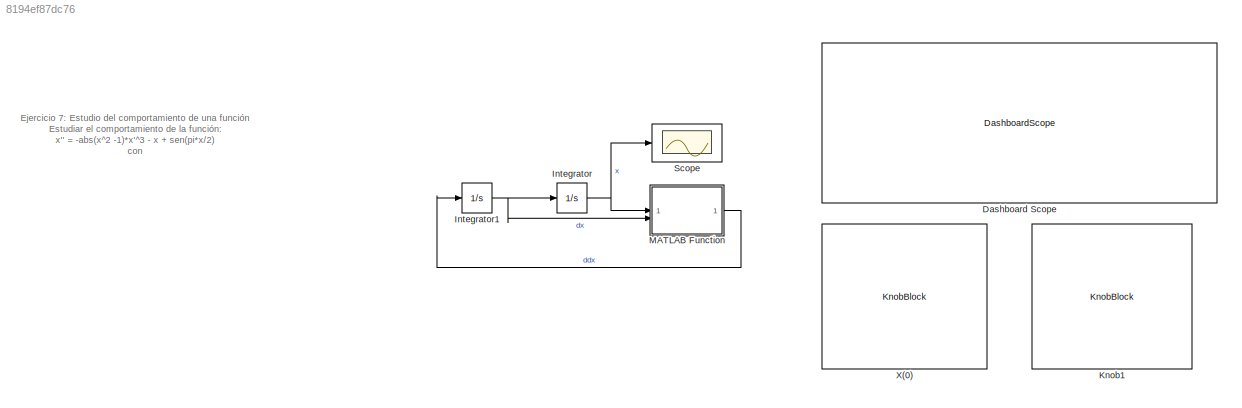
MODEL slx_8194ef87dc76
KIND model
CONFIG AbsTol = auto
CONFIG EnableMultiTasking = off
CONFIG FixedStep = auto
CONFIG MaxStep = 0.001
CONFIG MinStep = auto
CONFIG RelTol = 1e-3
CONFIG SampleTimeConstraint = Unconstrained
CONFIG SolverName = ode23
CONFIG StartTime = 0.0
CONFIG StopTime = 5000
BLOCK [DashboardScope] Dashboard Scope
BLOCK [Integrator] Integrator
  InitialCondition = 1
BLOCK [Integrator] Integrator1
  InitialCondition = 0.5
BLOCK [KnobBlock] Knob1
  ScaleMax = 1
  ScaleMin = -1
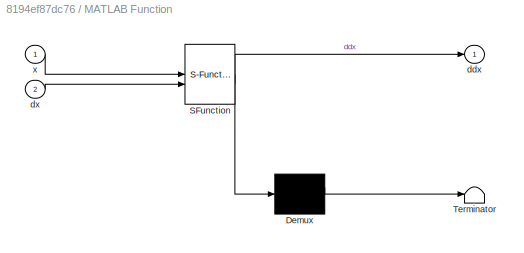
BLOCK [SubSystem] MATLAB Function
  ErrorFcn = Stateflow.Translate.translate
  LibrarySourceBlock = simulink/User-Defined\nFunctions/MATLAB Function
  PermitHierarchicalResolution = ExplicitOnly
  SFBlockType = MATLAB Function
  TreatAsAtomicUnit = on
BLOCK [Demux] MATLAB Function/ Demux 
  Outputs = 1
BLOCK [S-Function] MATLAB Function/ SFunction 
  EnableBusSupport = on
  FunctionName = sf_sfun
  PortCounts = [2 2]
  SFcnIsStateOwnerBlock = off
  SFunctionDeploymentMode = off
  Tag = Stateflow S-Function 2
BLOCK [Terminator] MATLAB Function/ Terminator 
BLOCK [Outport] MATLAB Function/ddx
BLOCK [Inport] MATLAB Function/dx
  Port = 2
BLOCK [Inport] MATLAB Function/x
BLOCK [Scope] Scope
  Floating = off
  NumInputPorts = 1
  ScopeSpecificationString = Simulink.scopes.TimeScopeBlockCfg('CurrentConfiguration', extmgr.ConfigurationSet(extmgr.Configuration('Core','General UI',true),extmgr.Configuration('Core','Source UI',true),extmgr.Configuration('Sources','WiredSimulink',true),extmgr.Configuration('Visuals','Time Domain',true,'SerializedDisplays',{struct('MinYLimReal','0.25868','MaxYLimReal','1.54422','YLabelReal','','MinYLimMag','0.25868','MaxYL...<+1371ch>
BLOCK [KnobBlock] X(0)
  ScaleMax = 1
  ScaleMin = -1
ANNOTATION (root): E jercicio 7: Estudio del comportamiento de una función Estudiar el comportamiento de la función: x'' = -abs(x^2 -1)*x'^3 - x + sen(pi*x/2) con
NET Integrator1:1 -> Integrator:1, MATLAB Function:2
NET Integrator:1 -> MATLAB Function:1, Scope:1
LINE MATLAB Function:1 -> Integrator1:1
note: NET lines group one-source signal fan-out (src -> all destinations, sorted); 1:1 wires keep LINE
CHART MATLAB Function states=1 transitions=1
  STATE_LABEL 'eML_blk_kernel()'
  STATE_LABEL 'SCRIPT:\nfunction ddx = fcn(x, dx)\n\nddx = -abs(x^2 -1)*dx^3 - x + sin(pi*x/2);\n'
CHART  states=0 transitions=0
